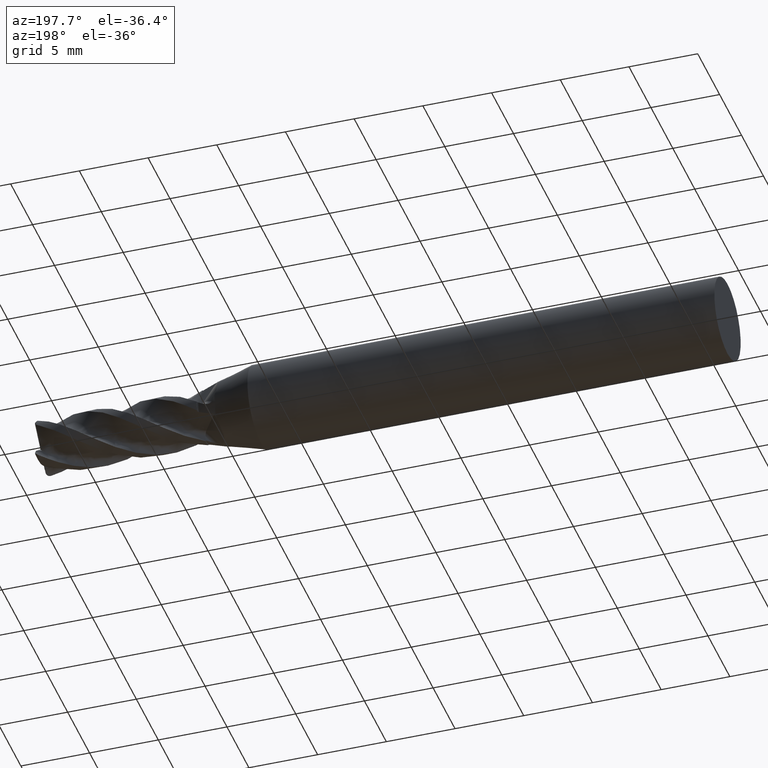
[diagram: clean part render]
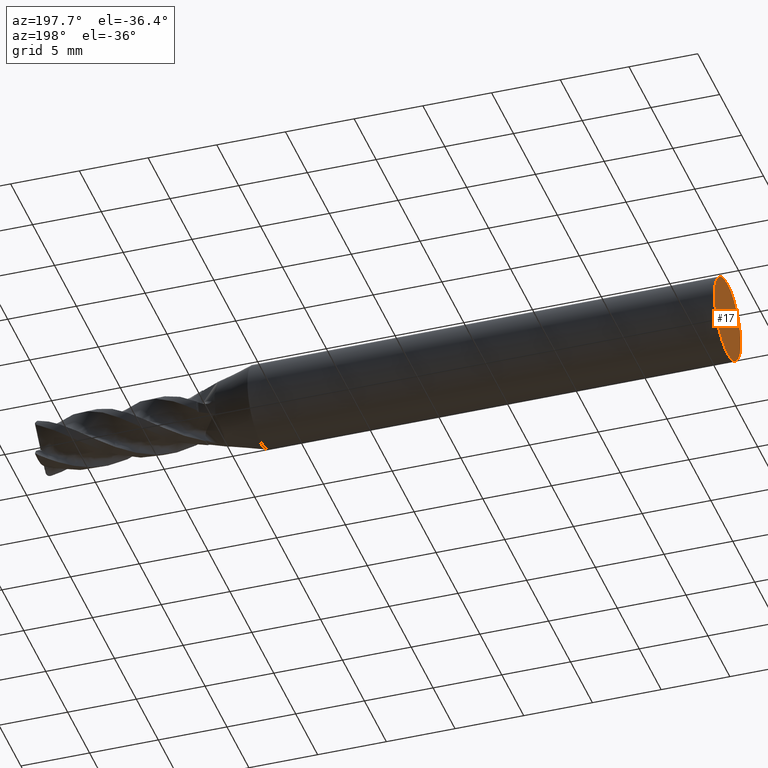
[diagram: same view with one face highlighted and labeled with its STEP entity id]
A machine part, auxiliary view. The second image highlights one B-rep face of the part: STEP entity #17.
In plain terms, the highlighted planar face has unit normal (1, 0, 0).
Its self-contained STEP definition (entity closure, byte-faithful):
#17 = ADVANCED_FACE ( 'NONE', ( #7250 ), #6923, .F. ) ;
#121 = EDGE_CURVE ( 'NONE', #7036, #7039, #7226, .T. ) ;
#188 = EDGE_CURVE ( 'NONE', #7039, #7036, #7195, .T. ) ;
#252 = AXIS2_PLACEMENT_3D ( 'NONE', #6921, #6909, #6910 ) ;
#312 = AXIS2_PLACEMENT_3D ( 'NONE', #2694, #2708, #2709 ) ;
#326 = AXIS2_PLACEMENT_3D ( 'NONE', #6782, #6792, #6793 ) ;
#2694 = CARTESIAN_POINT ( 'NONE',  ( -36.00000000000000700, 0.0000000000000000000, 0.0000000000000000000 ) ) ;
#2708 = DIRECTION ( 'NONE',  ( -1.000000000000000000, -0.0000000000000000000, -0.0000000000000000000 ) ) ;
#2709 = DIRECTION ( 'NONE',  ( 0.0000000000000000000, 0.0000000000000000000, 1.000000000000000000 ) ) ;
#4992 = CARTESIAN_POINT ( 'NONE',  ( -36.00000000000000700, 0.0000000000000000000, 3.000000000000002700 ) ) ;
#4995 = CARTESIAN_POINT ( 'NONE',  ( -36.00000000000000700, 3.673940397442064800E-016, -3.000000000000002700 ) ) ;
#6782 = CARTESIAN_POINT ( 'NONE',  ( -36.00000000000000700, 0.0000000000000000000, 0.0000000000000000000 ) ) ;
#6792 = DIRECTION ( 'NONE',  ( -1.000000000000000000, -0.0000000000000000000, -0.0000000000000000000 ) ) ;
#6793 = DIRECTION ( 'NONE',  ( 0.0000000000000000000, 0.0000000000000000000, 1.000000000000000000 ) ) ;
#6823 = ORIENTED_EDGE ( 'NONE', *, *, #188, .T. ) ;
#6836 = ORIENTED_EDGE ( 'NONE', *, *, #121, .T. ) ;
#6909 = DIRECTION ( 'NONE',  ( 1.000000000000000000, 0.0000000000000000000, 0.0000000000000000000 ) ) ;
#6910 = DIRECTION ( 'NONE',  ( 0.0000000000000000000, 0.0000000000000000000, -1.000000000000000000 ) ) ;
#6921 = CARTESIAN_POINT ( 'NONE',  ( -36.00000000000000700, 3.000000000000002700, 0.0000000000000000000 ) ) ;
#6923 = PLANE ( 'NONE',  #252 ) ;
#7036 = VERTEX_POINT ( 'NONE', #4992 ) ;
#7039 = VERTEX_POINT ( 'NONE', #4995 ) ;
#7195 = CIRCLE ( 'NONE', #312, 3.000000000000002700 ) ;
#7226 = CIRCLE ( 'NONE', #326, 3.000000000000002700 ) ;
#7250 = FACE_OUTER_BOUND ( 'NONE', #7423, .T. ) ;
#7423 = EDGE_LOOP ( 'NONE', ( #6836, #6823 ) ) ;